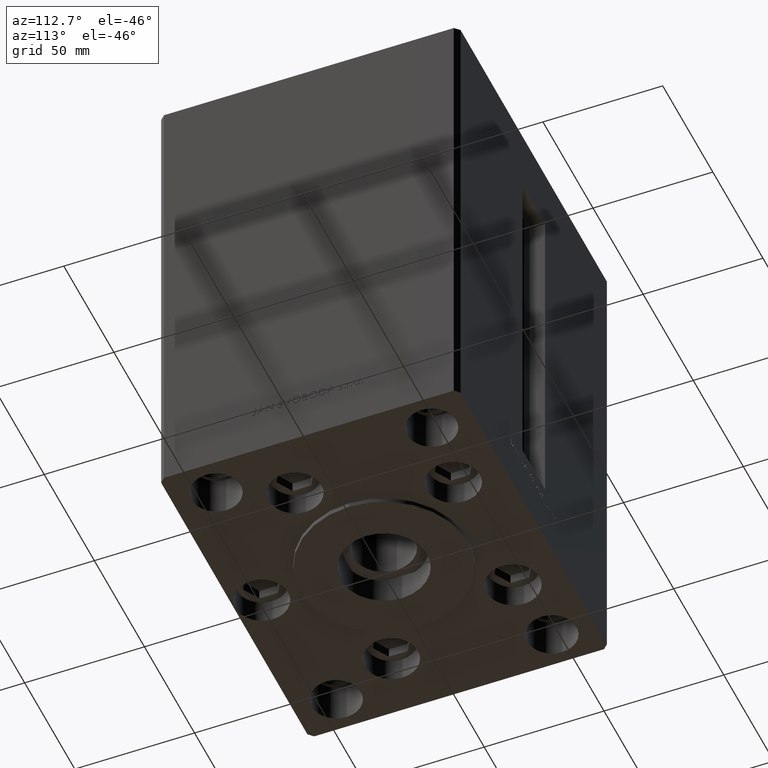
[diagram: clean part render]
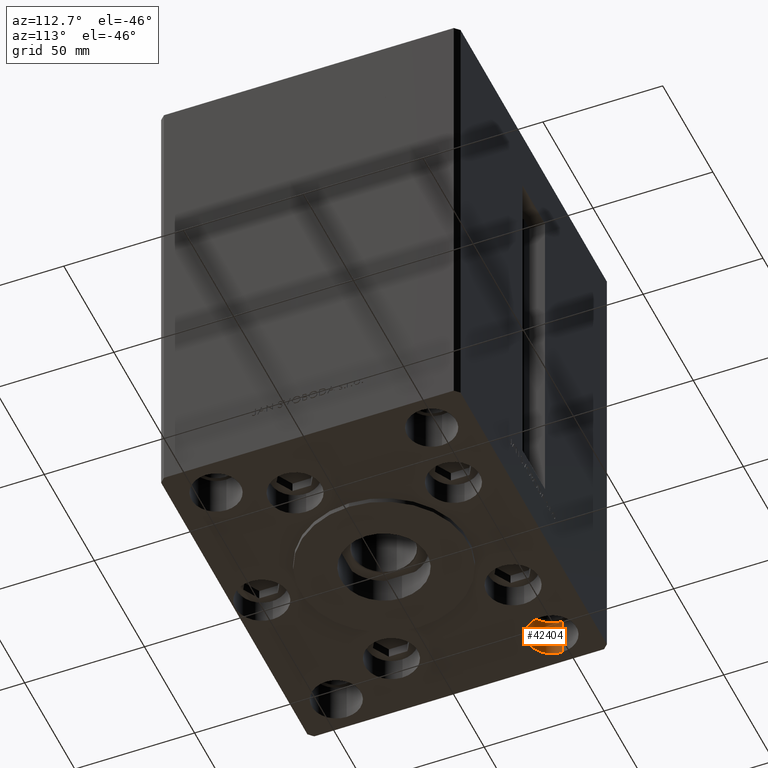
[diagram: same view with one face highlighted and labeled with its STEP entity id]
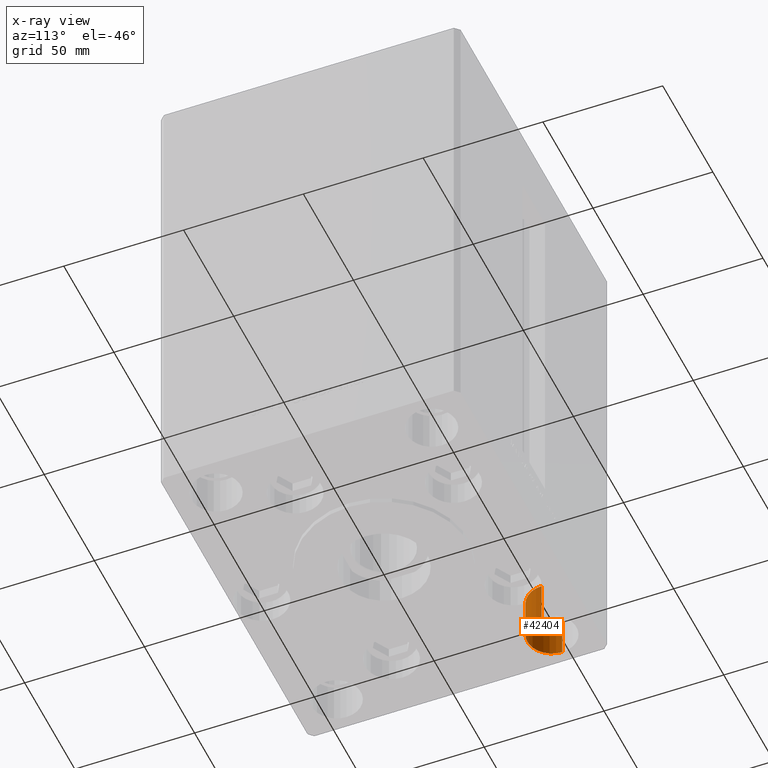
[diagram: x-ray of the same camera — body ghosted, the highlighted face saturated]
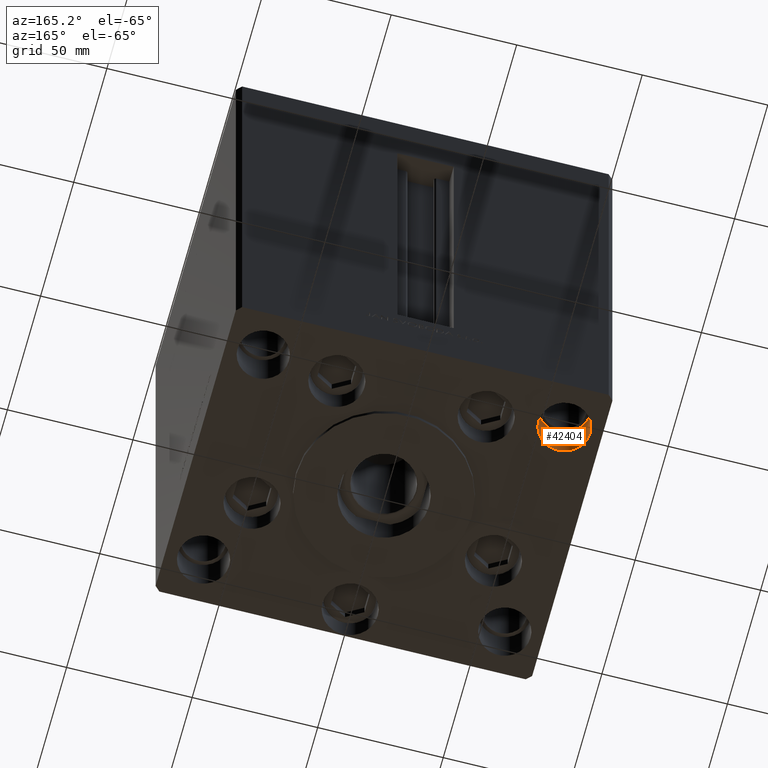
[diagram: same view with one face highlighted and labeled with its STEP entity id]
A machine part, auxiliary view. The second image highlights one B-rep face of the part: STEP entity #42404.
The next image is the same camera in x-ray: the body ghosted, the highlighted face saturated — about 0% of this face is hidden behind the body in this view.
A second angle (auxiliary view) of the same face is appended — the face is thin or edge-on in the first view.
In plain terms, the highlighted cylindrical surface (edge-blend (fillet) strip) has radius 10.25 mm, axis along (0, 0, -1).
Its self-contained STEP definition (entity closure, byte-faithful):
#2408 = ORIENTED_EDGE ( 'NONE', *, *, #26874, .F. ) ;
#4807 = ORIENTED_EDGE ( 'NONE', *, *, #45264, .T. ) ;
#4870 = DIRECTION ( 'NONE',  ( 1.000000000000000000, 0.000000000000000000, 0.000000000000000000 ) ) ;
#5448 = VERTEX_POINT ( 'NONE', #9130 ) ;
#8362 = DIRECTION ( 'NONE',  ( 0.000000000000000000, 0.000000000000000000, 1.000000000000000000 ) ) ;
#8924 = EDGE_LOOP ( 'NONE', ( #2408, #20738, #4807, #45206 ) ) ;
#9130 = CARTESIAN_POINT ( 'NONE',  ( 70.25000000000000000, 45.00000000000000000, 0.000000000000000000 ) ) ;
#10774 = AXIS2_PLACEMENT_3D ( 'NONE', #34217, #16116, #19341 ) ;
#11111 = CARTESIAN_POINT ( 'NONE',  ( 70.25000000000000000, 45.00000000000000000, -17.00000000000000000 ) ) ;
#11170 = CIRCLE ( 'NONE', #42771, 10.24999999999999467 ) ;
#12275 = FACE_OUTER_BOUND ( 'NONE', #8924, .T. ) ;
#12362 = EDGE_CURVE ( 'NONE', #35489, #5448, #29905, .T. ) ;
#12745 = VERTEX_POINT ( 'NONE', #22166 ) ;
#14300 = CARTESIAN_POINT ( 'NONE',  ( 49.75000000000000000, 45.00000000000000000, -17.00000000000000000 ) ) ;
#15060 = DIRECTION ( 'NONE',  ( -0.000000000000000000, -0.000000000000000000, 1.000000000000000000 ) ) ;
#15487 = CIRCLE ( 'NONE', #10774, 10.24999999999999467 ) ;
#16116 = DIRECTION ( 'NONE',  ( 0.000000000000000000, 0.000000000000000000, 1.000000000000000000 ) ) ;
#18184 = AXIS2_PLACEMENT_3D ( 'NONE', #27351, #42455, #4870 ) ;
#19234 = DIRECTION ( 'NONE',  ( 1.000000000000000000, 0.000000000000000000, 0.000000000000000000 ) ) ;
#19341 = DIRECTION ( 'NONE',  ( 1.000000000000000000, 0.000000000000000000, 0.000000000000000000 ) ) ;
#19837 = VECTOR ( 'NONE', #25677, 1000.000000000000000 ) ;
#20738 = ORIENTED_EDGE ( 'NONE', *, *, #45093, .T. ) ;
#22166 = CARTESIAN_POINT ( 'NONE',  ( 49.75000000000000000, 45.00000000000000000, -17.00000000000000000 ) ) ;
#25677 = DIRECTION ( 'NONE',  ( -0.000000000000000000, -0.000000000000000000, 1.000000000000000000 ) ) ;
#26874 = EDGE_CURVE ( 'NONE', #12745, #35489, #15487, .T. ) ;
#27351 = CARTESIAN_POINT ( 'NONE',  ( 60.00000000000000000, 45.00000000000000000, -17.00000000000000000 ) ) ;
#29905 = LINE ( 'NONE', #11111, #36481 ) ;
#31369 = CARTESIAN_POINT ( 'NONE',  ( 49.75000000000000000, 45.00000000000000000, 0.000000000000000000 ) ) ;
#32757 = VERTEX_POINT ( 'NONE', #31369 ) ;
#33118 = LINE ( 'NONE', #14300, #19837 ) ;
#33556 = CARTESIAN_POINT ( 'NONE',  ( 70.25000000000000000, 45.00000000000000000, -17.00000000000000000 ) ) ;
#34217 = CARTESIAN_POINT ( 'NONE',  ( 60.00000000000000000, 45.00000000000000000, -17.00000000000000000 ) ) ;
#35489 = VERTEX_POINT ( 'NONE', #33556 ) ;
#36481 = VECTOR ( 'NONE', #15060, 1000.000000000000000 ) ;
#38048 = CARTESIAN_POINT ( 'NONE',  ( 60.00000000000000000, 45.00000000000000000, 0.000000000000000000 ) ) ;
#38754 = CYLINDRICAL_SURFACE ( 'NONE', #18184, 10.24999999999999467 ) ;
#42404 = ADVANCED_FACE ( 'NONE', ( #12275 ), #38754, .F. ) ;
#42455 = DIRECTION ( 'NONE',  ( -0.000000000000000000, -0.000000000000000000, 1.000000000000000000 ) ) ;
#42771 = AXIS2_PLACEMENT_3D ( 'NONE', #38048, #8362, #19234 ) ;
#45093 = EDGE_CURVE ( 'NONE', #12745, #32757, #33118, .T. ) ;
#45206 = ORIENTED_EDGE ( 'NONE', *, *, #12362, .F. ) ;
#45264 = EDGE_CURVE ( 'NONE', #32757, #5448, #11170, .T. ) ;